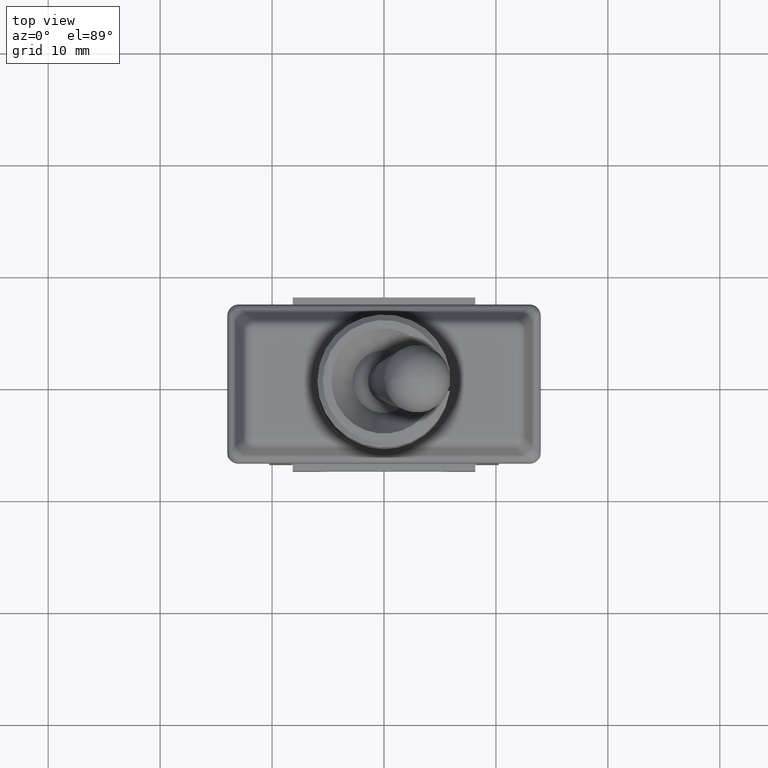
[diagram: clean part render]
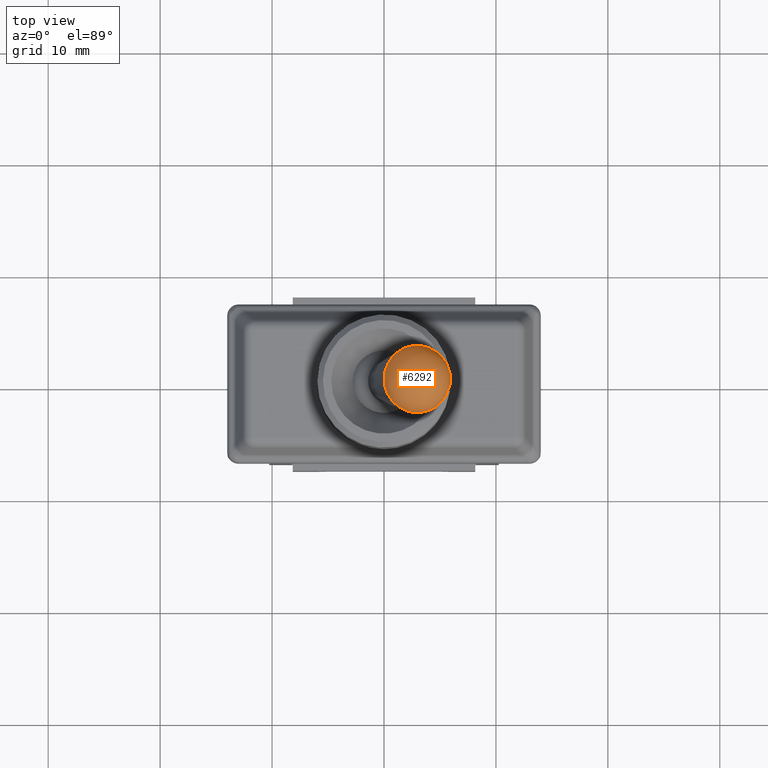
[diagram: same view with one face highlighted and labeled with its STEP entity id]
A machine part, top view. The second image highlights one B-rep face of the part: STEP entity #6292.
In plain terms, the highlighted spherical surface has radius 3 mm.
Its self-contained STEP definition (entity closure, byte-faithful):
#1881=FACE_OUTER_BOUND('',#2278,.T.);
#2278=EDGE_LOOP('',(#5865,#5866,#5867,#5868));
#2583=CIRCLE('',#6950,0.3);
#2584=CIRCLE('',#6951,0.3);
#2585=CIRCLE('',#6952,0.3);
#3134=VERTEX_POINT('',#11574);
#3135=VERTEX_POINT('',#11575);
#3136=VERTEX_POINT('',#11578);
#4046=EDGE_CURVE('',#3134,#3135,#2583,.T.);
#4047=EDGE_CURVE('',#3135,#3134,#2584,.T.);
#4048=EDGE_CURVE('',#3136,#3134,#2585,.T.);
#5865=ORIENTED_EDGE('',*,*,#4046,.T.);
#5866=ORIENTED_EDGE('',*,*,#4047,.T.);
#5867=ORIENTED_EDGE('',*,*,#4048,.F.);
#5868=ORIENTED_EDGE('',*,*,#4048,.T.);
#5914=SPHERICAL_SURFACE('',#6949,0.3);
#6292=ADVANCED_FACE('',(#1881),#5914,.T.);
#6949=AXIS2_PLACEMENT_3D('',#11573,#8735,#8736);
#6950=AXIS2_PLACEMENT_3D('',#11576,#8737,#8738);
#6951=AXIS2_PLACEMENT_3D('',#11577,#8739,#8740);
#6952=AXIS2_PLACEMENT_3D('',#11579,#8741,#8742);
#8735=DIRECTION('center_axis',(0.,0.,1.));
#8736=DIRECTION('ref_axis',(1.,0.,0.));
#8737=DIRECTION('center_axis',(0.190808995376545,0.,0.981627183447664));
#8738=DIRECTION('ref_axis',(-0.981627183447664,0.,0.190808995376545));
#8739=DIRECTION('center_axis',(0.190808995376545,0.,0.981627183447664));
#8740=DIRECTION('ref_axis',(-0.981627183447664,0.,0.190808995376545));
#8741=DIRECTION('center_axis',(1.22464679914735E-16,-1.,0.));
#8742=DIRECTION('ref_axis',(-1.,-1.22464679914735E-16,0.));
#11573=CARTESIAN_POINT('Origin',(0.295753942833644,0.,2.69652213434388));
#11574=CARTESIAN_POINT('',(0.00126578779934494,0.,2.75376483295684));
#11575=CARTESIAN_POINT('',(0.590242097867943,3.67394039744206E-17,2.63927943573092));
#11576=CARTESIAN_POINT('Origin',(0.295753942833644,0.,2.69652213434388));
#11577=CARTESIAN_POINT('Origin',(0.295753942833644,0.,2.69652213434388));
#11578=CARTESIAN_POINT('',(0.295753942833644,-2.24963967399279E-33,2.99652213434388));
#11579=CARTESIAN_POINT('Origin',(0.295753942833644,0.,2.69652213434388));